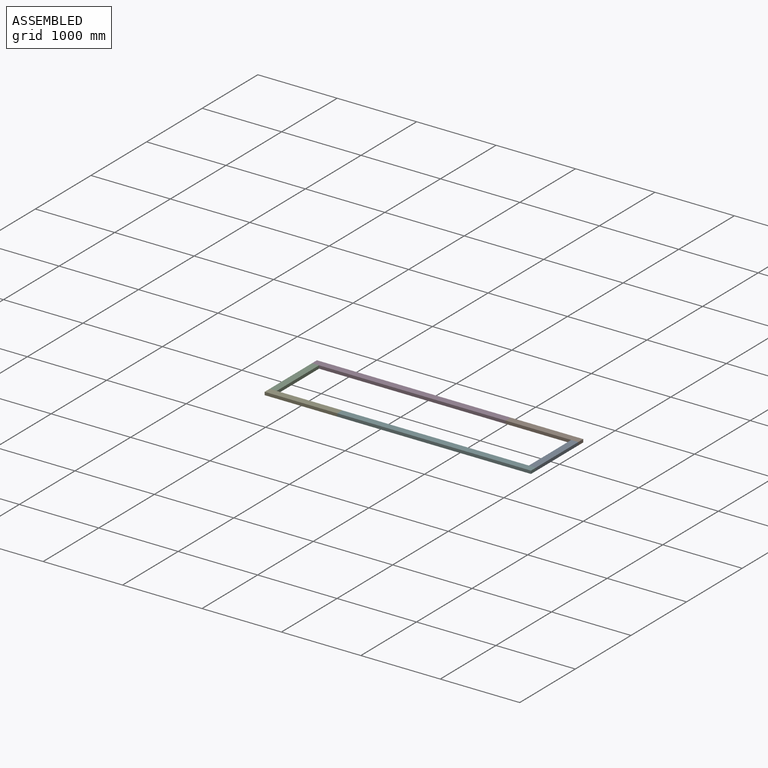
[diagram: assembled view]
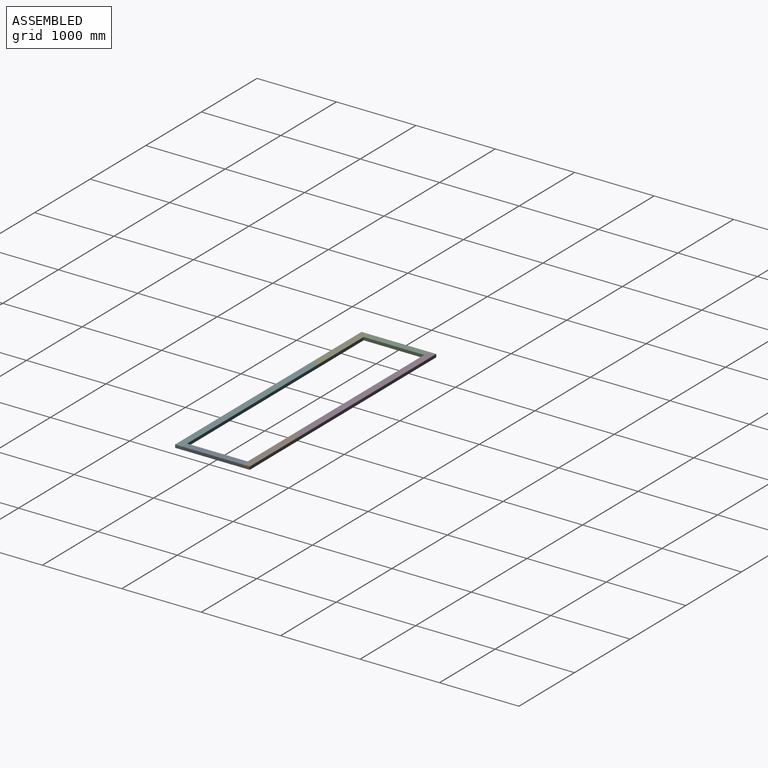
[diagram: assembled view, second angle]
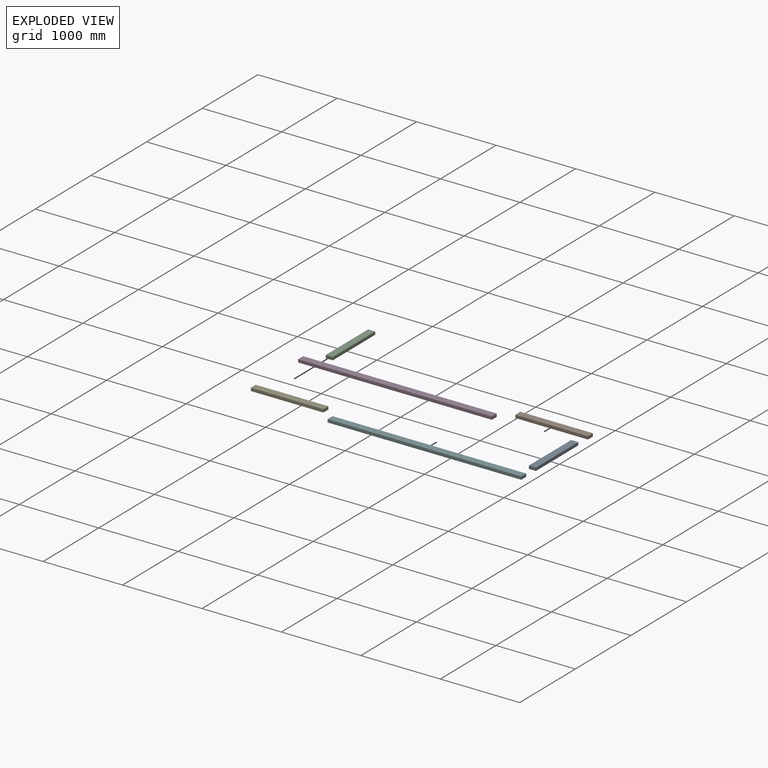
[diagram: exploded view]
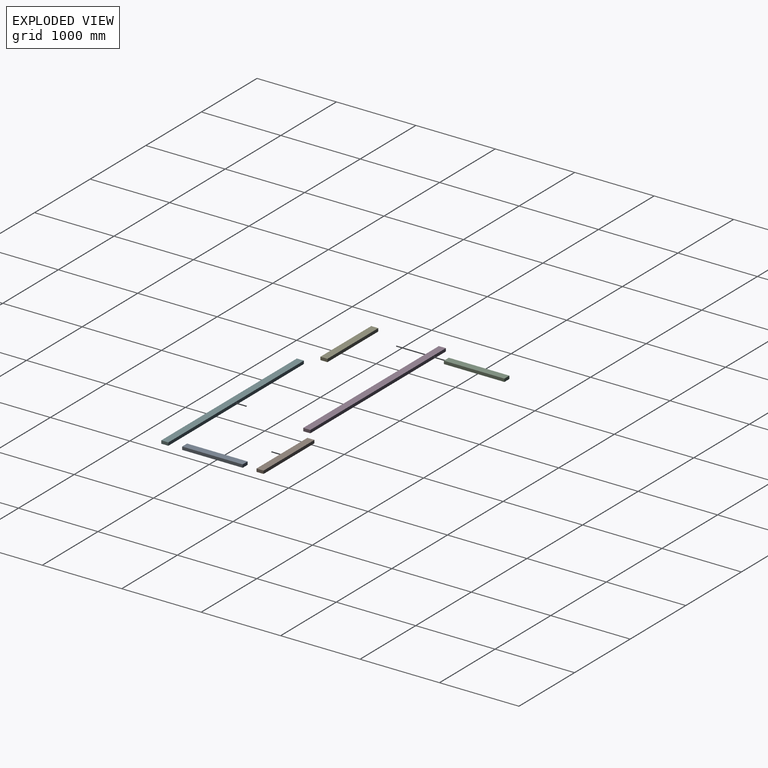
[diagram: exploded view, second angle]
ASSEMBLY  parts=6 mates=5
PART A: 6 faces, bbox 762x88.9x38.1 mm
  f0: plane 88.9x38.1mm, normal (-1,0,0), area 3387.1mm2, adj f1,f3,f4,f5
  f1: plane 762x38.1mm, normal (0,-1,0), area 29032.2mm2, adj f0,f2,f4,f5
  f2: plane 88.9x38.1mm, normal (1,0,0), area 3387.1mm2, adj f1,f3,f4,f5
  f3: plane 762x38.1mm, normal (0,1,0), area 29032.2mm2, adj f0,f2,f4,f5
  f4: plane 762x88.9mm, normal (0,0,1), area 67741.8mm2, adj f0,f1,f2,f3
  f5: plane 762x88.9mm, normal (0,0,-1), area 67741.8mm2, adj f0,f1,f2,f3
PART B: 6 faces, bbox 914.4x88.9x38.1 mm
  f0: plane 914.4x38.1mm, normal (0,1,0), area 34838.6mm2, adj f1,f3,f4,f5
  f1: plane 88.9x38.1mm, normal (-1,0,0), area 3387.1mm2, adj f0,f2,f4,f5
  f2: plane 914.4x38.1mm, normal (0,-1,0), area 34838.6mm2, adj f1,f3,f4,f5
  f3: plane 88.9x38.1mm, normal (1,0,0), area 3387.1mm2, adj f0,f2,f4,f5
  f4: plane 914.4x88.9mm, normal (0,0,1), area 81290.2mm2, adj f0,f1,f2,f3
  f5: plane 914.4x88.9mm, normal (0,0,-1), area 81290.2mm2, adj f0,f1,f2,f3
PART C: same geometry as A
PART D: 6 faces, bbox 2438.4x88.9x38.1 mm
  f0: plane 88.9x38.1mm, normal (-1,0,0), area 3387.1mm2, adj f1,f3,f4,f5
  f1: plane 2438.4x38.1mm, normal (0,-1,0), area 92903mm2, adj f0,f2,f4,f5
  f2: plane 88.9x38.1mm, normal (1,0,0), area 3387.1mm2, adj f1,f3,f4,f5
  f3: plane 2438.4x38.1mm, normal (0,1,0), area 92903mm2, adj f0,f2,f4,f5
  f4: plane 2438.4x88.9mm, normal (0,0,1), area 216773.8mm2, adj f0,f1,f2,f3
  f5: plane 2438.4x88.9mm, normal (0,0,-1), area 216773.8mm2, adj f0,f1,f2,f3
PART E: same geometry as B
PART F: same geometry as D
PLACE A rot(axis=(0.71,0.71,0),180deg) t=(2709,35.99,17.59)mm
PLACE B rot(axis=(0,1,0),180deg) t=(2554.78,846.21,17.59)mm
PLACE C rot(axis=(0.71,0.71,0),180deg) t=(-554.9,35.99,17.59)mm
PLACE D rot(axis=(0,1,0),180deg) t=(1642.44,-58,17.59)mm
PLACE E t=(13.53,-4.69,-20.51)mm
PLACE F rot(axis=(1,0,0),180deg) t=(925.87,84.55,17.59)mm
MATE fastened B.f3 <-> D.f0  axis (-1,0,0) through (2046.16,438.72,-1.46)mm
MATE fastened C.f2 <-> D.f1  axis (0,1,0) through (-347.79,394.27,-1.46)mm
MATE fastened F.f0 <-> E.f3  axis (-1,0,0) through (522.16,-412.18,-1.46)mm
MATE fastened A.f0 <-> F.f1  axis (0,-1,0) through (2916.11,-367.73,-1.46)mm
MATE fastened A.f2 <-> B.f2  axis (0,1,0) through (2916.11,394.27,-1.46)mm
